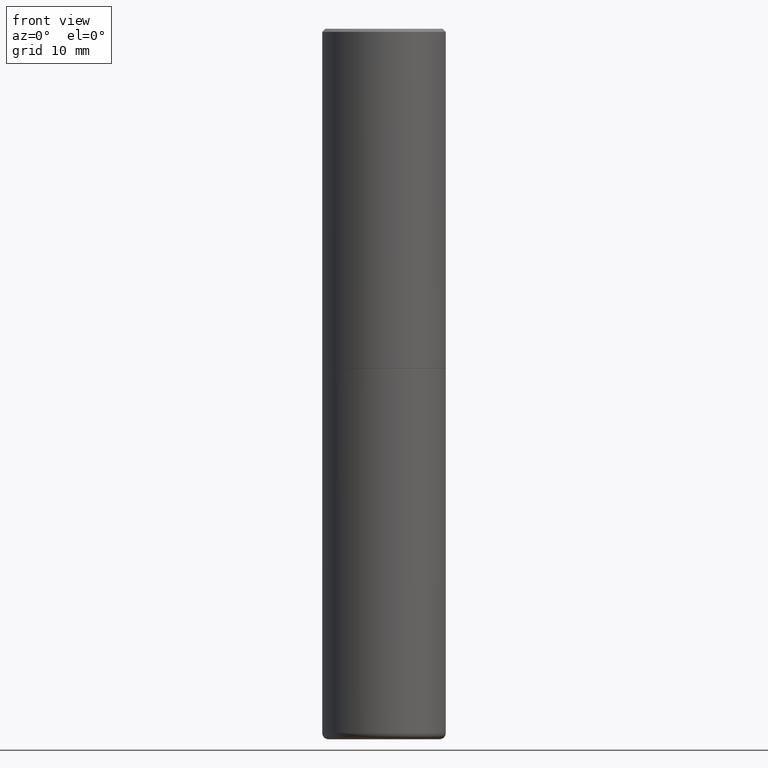
[diagram: clean part render]
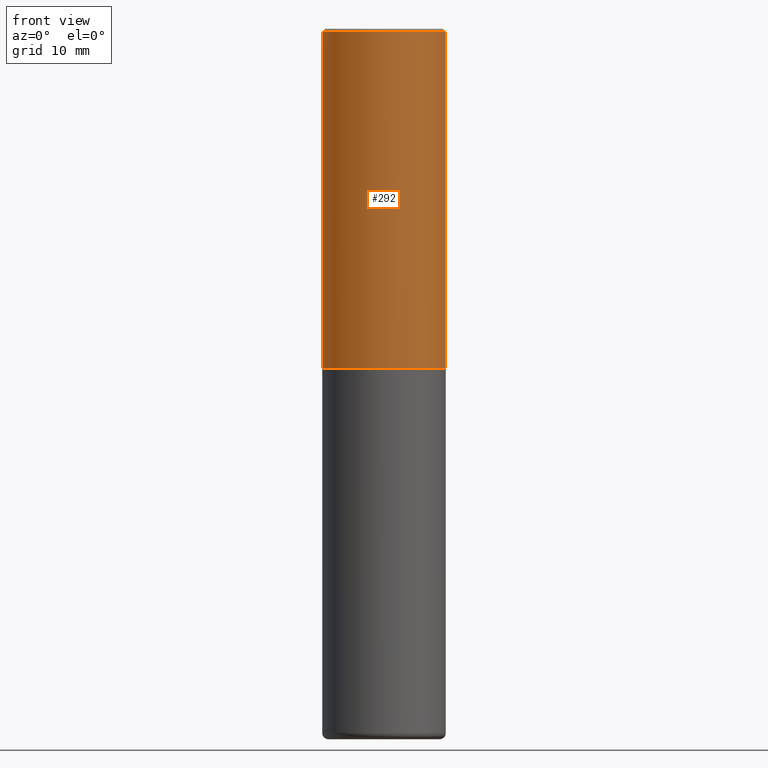
[diagram: same view with one face highlighted and labeled with its STEP entity id]
A machine part, front view. The second image highlights one B-rep face of the part: STEP entity #292.
In plain terms, the highlighted cylindrical surface (partial cylindrical patch) has radius 10 mm, axis along (-0, 0, 1).
Its self-contained STEP definition (entity closure, byte-faithful):
#1 = CARTESIAN_POINT ( 'NONE',  ( -0.3937000000000002720, -1.015989167596965718E-15, -2.164399999999999658 ) ) ;
#2 = CIRCLE ( 'NONE', #319, 0.3937000000000001054 ) ;
#13 = FACE_OUTER_BOUND ( 'NONE', #133, .T. ) ;
#22 = DIRECTION ( 'NONE',  ( -2.445468806185136877E-29, 3.491481338843145188E-15, 1.000000000000000000 ) ) ;
#29 = VECTOR ( 'NONE', #22, 39.37007874015748143 ) ;
#30 = VERTEX_POINT ( 'NONE', #152 ) ;
#33 = VERTEX_POINT ( 'NONE', #282 ) ;
#39 = CARTESIAN_POINT ( 'NONE',  ( -0.3937000000000002164, 2.797406750687515970E-15, -1.936584745033357576E-29 ) ) ;
#47 = DIRECTION ( 'NONE',  ( -2.445468806185136597E-29, 3.491481338843145583E-15, 1.000000000000000000 ) ) ;
#57 = ORIENTED_EDGE ( 'NONE', *, *, #145, .F. ) ;
#67 = EDGE_CURVE ( 'NONE', #30, #403, #183, .T. ) ;
#68 = ORIENTED_EDGE ( 'NONE', *, *, #153, .F. ) ;
#82 = CARTESIAN_POINT ( 'NONE',  ( 0.000000000000000000, 0.000000000000000000, 0.000000000000000000 ) ) ;
#99 = ORIENTED_EDGE ( 'NONE', *, *, #67, .T. ) ;
#112 = DIRECTION ( 'NONE',  ( 1.000000000000000000, -6.982962677686266711E-15, 4.876176775795935793E-29 ) ) ;
#131 = DIRECTION ( 'NONE',  ( -2.445468806185136877E-29, 3.491481338843145188E-15, 1.000000000000000000 ) ) ;
#133 = EDGE_LOOP ( 'NONE', ( #68, #373, #99, #57 ) ) ;
#145 = EDGE_CURVE ( 'NONE', #33, #403, #2, .T. ) ;
#152 = CARTESIAN_POINT ( 'NONE',  ( 0.3937000000000002720, -1.030615461599718763E-14, -2.164399999999999658 ) ) ;
#153 = EDGE_CURVE ( 'NONE', #171, #33, #265, .T. ) ;
#166 = AXIS2_PLACEMENT_3D ( 'NONE', #348, #47, #210 ) ;
#171 = VERTEX_POINT ( 'NONE', #1 ) ;
#183 = LINE ( 'NONE', #316, #29 ) ;
#210 = DIRECTION ( 'NONE',  ( 1.000000000000000000, -6.982962677686269077E-15, 0.000000000000000000 ) ) ;
#225 = CARTESIAN_POINT ( 'NONE',  ( 4.890937612370294178E-31, -6.982962677686321191E-17, -0.02000000000000008715 ) ) ;
#229 = DIRECTION ( 'NONE',  ( -2.445468806185136597E-29, 3.491481338843145583E-15, 1.000000000000000000 ) ) ;
#234 = VECTOR ( 'NONE', #131, 39.37007874015748143 ) ;
#243 = CARTESIAN_POINT ( 'NONE',  ( 0.3937000000000001054, -2.770807688499516128E-15, -0.02000000000000008715 ) ) ;
#265 = LINE ( 'NONE', #39, #234 ) ;
#280 = AXIS2_PLACEMENT_3D ( 'NONE', #82, #407, #112 ) ;
#282 = CARTESIAN_POINT ( 'NONE',  ( -0.3937000000000001054, 2.679362779428220707E-15, -0.02000000000000008715 ) ) ;
#292 = ADVANCED_FACE ( 'NONE', ( #13 ), #300, .T. ) ;
#299 = CIRCLE ( 'NONE', #166, 0.3937000000000002720 ) ;
#300 = CYLINDRICAL_SURFACE ( 'NONE', #280, 0.3937000000000002164 ) ;
#316 = CARTESIAN_POINT ( 'NONE',  ( 0.3937000000000002164, -2.749192406205084794E-15, 1.919750796630861012E-29 ) ) ;
#319 = AXIS2_PLACEMENT_3D ( 'NONE', #225, #229, #327 ) ;
#327 = DIRECTION ( 'NONE',  ( 1.000000000000000000, -6.982962677686266711E-15, 0.000000000000000000 ) ) ;
#348 = CARTESIAN_POINT ( 'NONE',  ( 5.292972684107107621E-29, -7.556962209792102838E-15, -2.164399999999999658 ) ) ;
#362 = EDGE_CURVE ( 'NONE', #171, #30, #299, .T. ) ;
#373 = ORIENTED_EDGE ( 'NONE', *, *, #362, .T. ) ;
#403 = VERTEX_POINT ( 'NONE', #243 ) ;
#407 = DIRECTION ( 'NONE',  ( -2.445468806185136597E-29, 3.491481338843145583E-15, 1.000000000000000000 ) ) ;